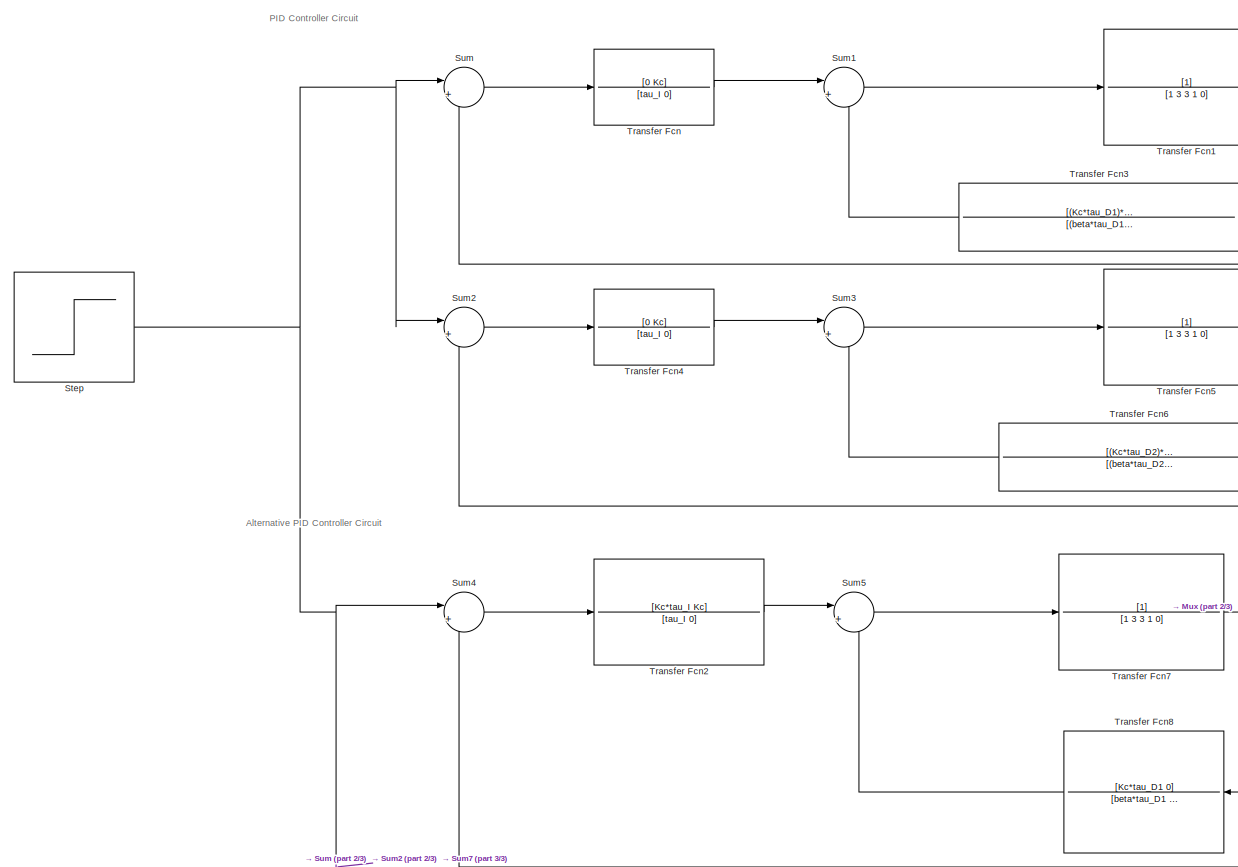
[diagram: root canvas - part 1/3, central region]
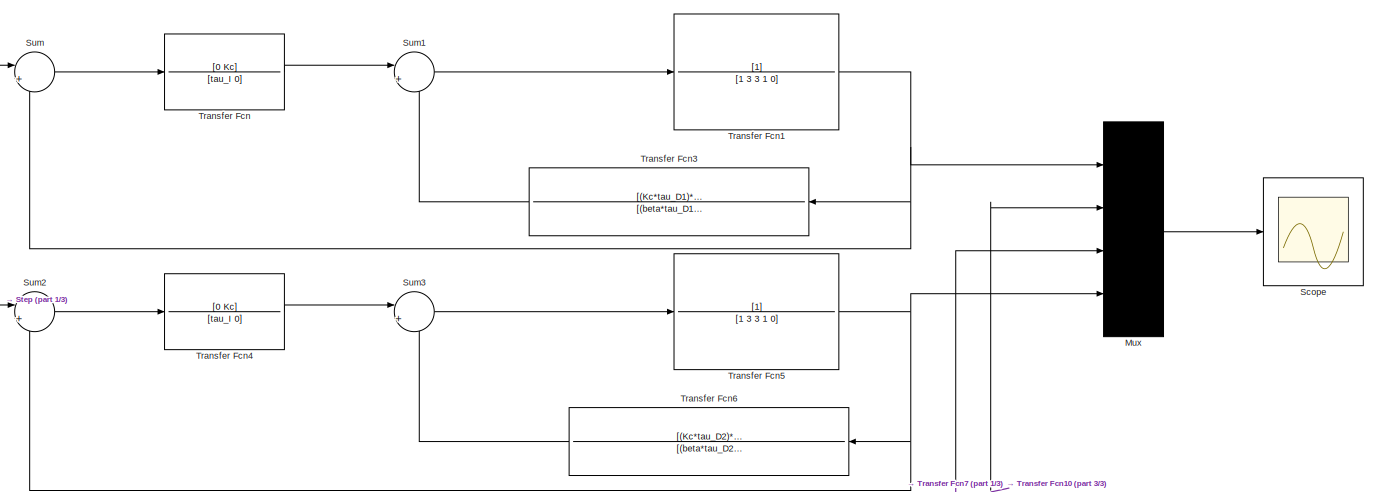
[diagram: root canvas - part 2/3, full width, top band]
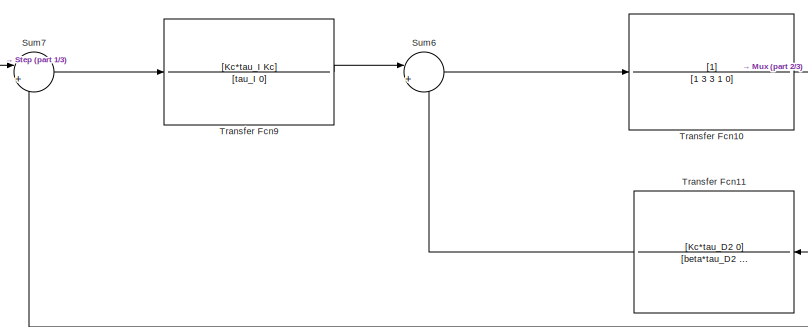
[diagram: root canvas - part 3/3, bottom center region]
MODEL slx_b0292a568a79
KIND model
CONFIG AbsTol = auto
CONFIG EnableMultiTasking = off
CONFIG FixedStep = auto
CONFIG MaxStep = auto
CONFIG MinStep = auto
CONFIG RelTol = 1e-3
CONFIG SampleTimeConstraint = Unconstrained
CONFIG Solver = VariableStepAuto
CONFIG SolverName = VariableStepAuto
CONFIG StartTime = 0.0
CONFIG StopTime = 60
BLOCK [Mux] Mux
  DisplayOption = bar
  Ports = [4, 1]
BLOCK [Scope] Scope
  Floating = off
  NumInputPorts = 1
  Ports = [1]
  ScopeSpecificationString = Simulink.scopes.TimeScopeBlockCfg('CurrentConfiguration', extmgr.ConfigurationSet(extmgr.Configuration('Core','General UI',true),extmgr.Configuration('Core','Source UI',true),extmgr.Configuration('Sources','WiredSimulink',true,'DataLogging',true,'DataLoggingSaveFormat','StructureWithTime'),extmgr.Configuration('Visuals','Time Domain',true,'SerializedDisplays',{struct('MinYLimReal','-0.25605','MaxY...<+1524ch>
BLOCK [Step] Step
  SampleTime = 0
  Time = 0
BLOCK [Sum] Sum
  IconShape = round
  InputSameDT = off
  Inputs = |+-
  OutDataTypeStr = Inherit: Inherit via internal rule
  Ports = [2, 1]
  SaturateOnIntegerOverflow = off
BLOCK [Sum] Sum1
  IconShape = round
  InputSameDT = off
  Inputs = |+-
  OutDataTypeStr = Inherit: Inherit via internal rule
  Ports = [2, 1]
  SaturateOnIntegerOverflow = off
BLOCK [Sum] Sum2
  IconShape = round
  InputSameDT = off
  Inputs = |+-
  OutDataTypeStr = Inherit: Inherit via internal rule
  Ports = [2, 1]
  SaturateOnIntegerOverflow = off
BLOCK [Sum] Sum3
  IconShape = round
  InputSameDT = off
  Inputs = |+-
  OutDataTypeStr = Inherit: Inherit via internal rule
  Ports = [2, 1]
  SaturateOnIntegerOverflow = off
BLOCK [Sum] Sum4
  IconShape = round
  InputSameDT = off
  Inputs = |+-
  OutDataTypeStr = Inherit: Inherit via internal rule
  Ports = [2, 1]
  SaturateOnIntegerOverflow = off
BLOCK [Sum] Sum5
  IconShape = round
  InputSameDT = off
  Inputs = |+-
  OutDataTypeStr = Inherit: Inherit via internal rule
  Ports = [2, 1]
  SaturateOnIntegerOverflow = off
BLOCK [Sum] Sum6
  IconShape = round
  InputSameDT = off
  Inputs = |+-
  OutDataTypeStr = Inherit: Inherit via internal rule
  Ports = [2, 1]
  SaturateOnIntegerOverflow = off
BLOCK [Sum] Sum7
  IconShape = round
  InputSameDT = off
  Inputs = |+-
  OutDataTypeStr = Inherit: Inherit via internal rule
  Ports = [2, 1]
  SaturateOnIntegerOverflow = off
BLOCK [TransferFcn] Transfer Fcn
  Denominator = [tau_I 0]
  Numerator = [0 Kc]
BLOCK [TransferFcn] Transfer Fcn1
  Denominator = [1 3 3 1 0]
BLOCK [TransferFcn] Transfer Fcn10
  Denominator = [1 3 3 1 0]
BLOCK [TransferFcn] Transfer Fcn11
  Denominator = [beta*tau_D2 1]
  Numerator = [Kc*tau_D2 0]
BLOCK [TransferFcn] Transfer Fcn2
  Denominator = [tau_I 0]
  Numerator = [Kc*tau_I Kc]
BLOCK [TransferFcn] Transfer Fcn3
  Denominator = [(beta*tau_D1) 1]
  Numerator = [(Kc*tau_D1)*(beta+1) Kc]
BLOCK [TransferFcn] Transfer Fcn4
  Denominator = [tau_I 0]
  Numerator = [0 Kc]
BLOCK [TransferFcn] Transfer Fcn5
  Denominator = [1 3 3 1 0]
BLOCK [TransferFcn] Transfer Fcn6
  Denominator = [(beta*tau_D2) 1]
  Numerator = [(Kc*tau_D2)*(beta+1) Kc]
BLOCK [TransferFcn] Transfer Fcn7
  Denominator = [1 3 3 1 0]
BLOCK [TransferFcn] Transfer Fcn8
  Denominator = [beta*tau_D1 1]
  Numerator = [Kc*tau_D1 0]
BLOCK [TransferFcn] Transfer Fcn9
  Denominator = [tau_I 0]
  Numerator = [Kc*tau_I Kc]
ANNOTATION (root): Alternative PID Controller Circuit
ANNOTATION (root): PID Controller Circuit
LINE Mux:1 -> Scope:1
NET Step:1 -> Sum2:1, Sum4:1, Sum7:1, Sum:1
LINE Sum1:1 -> Transfer Fcn1:1
LINE Sum2:1 -> Transfer Fcn4:1
LINE Sum3:1 -> Transfer Fcn5:1
LINE Sum4:1 -> Transfer Fcn2:1
LINE Sum5:1 -> Transfer Fcn7:1
LINE Sum6:1 -> Transfer Fcn10:1
LINE Sum7:1 -> Transfer Fcn9:1
LINE Sum:1 -> Transfer Fcn:1
NET Transfer Fcn10:1 -> Mux:2, Sum7:2, Transfer Fcn11:1
LINE Transfer Fcn11:1 -> Sum6:2
NET Transfer Fcn1:1 -> Mux:1, Sum:2, Transfer Fcn3:1
LINE Transfer Fcn2:1 -> Sum5:1
LINE Transfer Fcn3:1 -> Sum1:2
LINE Transfer Fcn4:1 -> Sum3:1
NET Transfer Fcn5:1 -> Mux:4, Sum2:2, Transfer Fcn6:1
LINE Transfer Fcn6:1 -> Sum3:2
NET Transfer Fcn7:1 -> Mux:3, Sum4:2, Transfer Fcn8:1
LINE Transfer Fcn8:1 -> Sum5:2
LINE Transfer Fcn9:1 -> Sum6:1
LINE Transfer Fcn:1 -> Sum1:1
note: NET lines group one-source signal fan-out (src -> all destinations, sorted); 1:1 wires keep LINE
